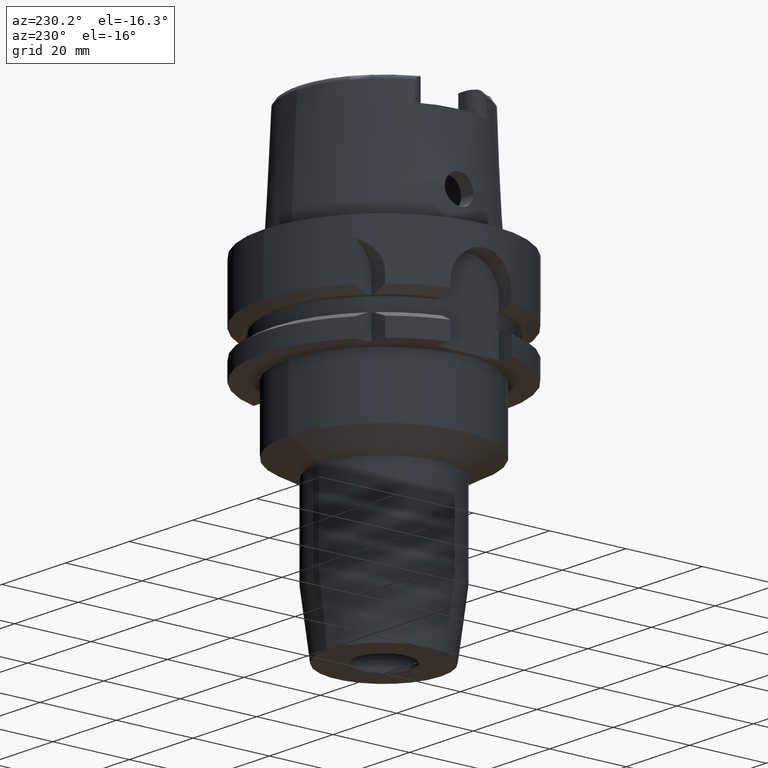
[diagram: clean part render]
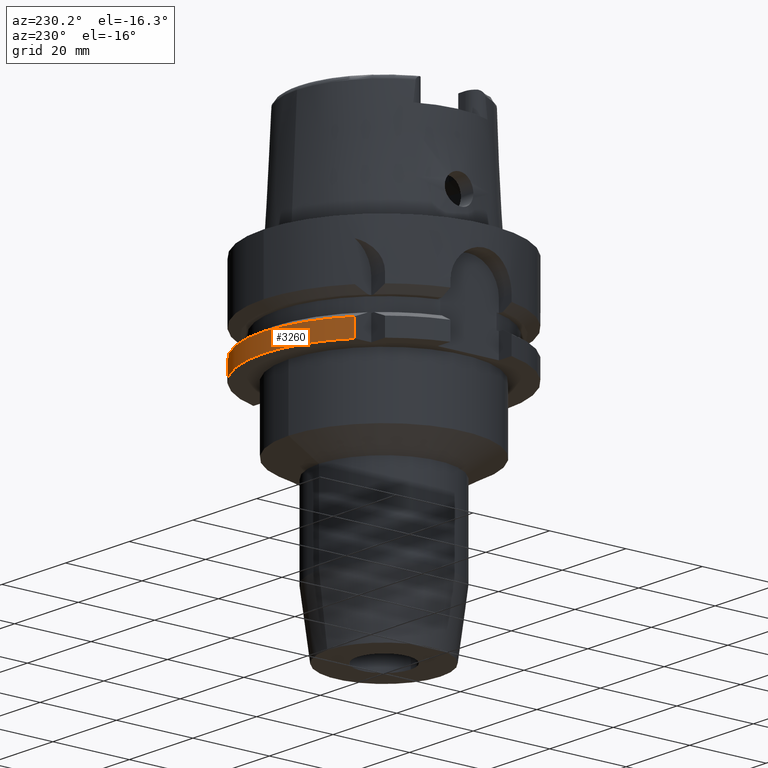
[diagram: same view with one face highlighted and labeled with its STEP entity id]
A machine part, auxiliary view. The second image highlights one B-rep face of the part: STEP entity #3260.
In plain terms, the highlighted cylindrical surface (partial cylindrical patch) has radius 31.5 mm, axis along (0, 0, 1).
Its self-contained STEP definition (entity closure, byte-faithful):
#1044=CARTESIAN_POINT('',(0.E0,0.E0,-2.6E1));
#1045=DIRECTION('',(0.E0,0.E0,1.E0));
#1046=DIRECTION('',(9.583148474999E-1,2.857142857143E-1,0.E0));
#1047=AXIS2_PLACEMENT_3D('',#1044,#1045,#1046);
#1052=CARTESIAN_POINT('',(0.E0,0.E0,-2.6E1));
#1053=DIRECTION('',(0.E0,0.E0,1.E0));
#1054=DIRECTION('',(0.E0,1.E0,0.E0));
#1055=AXIS2_PLACEMENT_3D('',#1052,#1053,#1054);
#1083=DIRECTION('',(2.980705268225E-6,2.449611599006E-6,-9.999999999926E-1));
#1084=VECTOR('',#1083,4.622451547712E0);
#1085=CARTESIAN_POINT('',(-2.000001377817E1,2.433617572407E1,
-2.137754845232E1));
#1086=LINE('',#1085,#1084);
#1090=DIRECTION('',(-4.471333665303E-8,1.499733867415E-7,1.E0));
#1091=VECTOR('',#1090,4.622495333631E0);
#1092=CARTESIAN_POINT('',(3.018691769625E1,9.E0,-2.6E1));
#1093=LINE('',#1092,#1091);
#1551=CARTESIAN_POINT('',(0.E0,0.E0,-2.137749907476E1));
#1552=DIRECTION('',(0.E0,0.E0,-1.E0));
#1553=DIRECTION('',(-6.349206349206E-1,7.725773665802E-1,0.E0));
#1554=AXIS2_PLACEMENT_3D('',#1551,#1552,#1553);
#1559=CARTESIAN_POINT('',(0.E0,0.E0,-2.137749907476E1));
#1560=DIRECTION('',(0.E0,0.E0,-1.E0));
#1561=DIRECTION('',(0.E0,1.E0,0.E0));
#1562=AXIS2_PLACEMENT_3D('',#1559,#1560,#1561);
#2433=CARTESIAN_POINT('',(-2.E1,2.433618704728E1,-2.6E1));
#2435=VERTEX_POINT('',#2433);
#2454=CARTESIAN_POINT('',(3.018691769625E1,9.E0,-2.6E1));
#2455=VERTEX_POINT('',#2454);
#2456=CARTESIAN_POINT('',(1.065814103640E-14,3.15E1,-2.6E1));
#2457=VERTEX_POINT('',#2456);
#2458=CARTESIAN_POINT('',(-2.000001377817E1,2.433617572407E1,
-2.137754845232E1));
#2459=VERTEX_POINT('',#2458);
#2478=CARTESIAN_POINT('',(3.018691748956E1,9.000000693251E0,-2.137750466637E1));
#2479=VERTEX_POINT('',#2478);
#2480=CARTESIAN_POINT('',(0.E0,3.15E1,-2.137749907476E1));
#2481=VERTEX_POINT('',#2480);
#3244=CARTESIAN_POINT('',(0.E0,0.E0,-9.085E1));
#3245=DIRECTION('',(0.E0,0.E0,1.E0));
#3246=DIRECTION('',(0.E0,1.E0,0.E0));
#3247=AXIS2_PLACEMENT_3D('',#3244,#3245,#3246);
#3248=CYLINDRICAL_SURFACE('',#3247,3.15E1);
#3249=ORIENTED_EDGE('',*,*,#3233,.T.);
#3250=ORIENTED_EDGE('',*,*,#3216,.F.);
#3251=ORIENTED_EDGE('',*,*,#3214,.F.);
#3253=ORIENTED_EDGE('',*,*,#3252,.T.);
#3255=ORIENTED_EDGE('',*,*,#3254,.F.);
#3257=ORIENTED_EDGE('',*,*,#3256,.F.);
#3258=EDGE_LOOP('',(#3249,#3250,#3251,#3253,#3255,#3257));
#3259=FACE_OUTER_BOUND('',#3258,.F.);
#1048=CIRCLE('',#1047,3.15E1);
#1056=CIRCLE('',#1055,3.15E1);
#1555=CIRCLE('',#1554,3.15E1);
#1563=CIRCLE('',#1562,3.15E1);
#3214=EDGE_CURVE('',#2455,#2457,#1048,.T.);
#3216=EDGE_CURVE('',#2457,#2435,#1056,.T.);
#3233=EDGE_CURVE('',#2459,#2435,#1086,.T.);
#3252=EDGE_CURVE('',#2455,#2479,#1093,.T.);
#3254=EDGE_CURVE('',#2481,#2479,#1563,.T.);
#3256=EDGE_CURVE('',#2459,#2481,#1555,.T.);
#3260=ADVANCED_FACE('',(#3259),#3248,.T.);